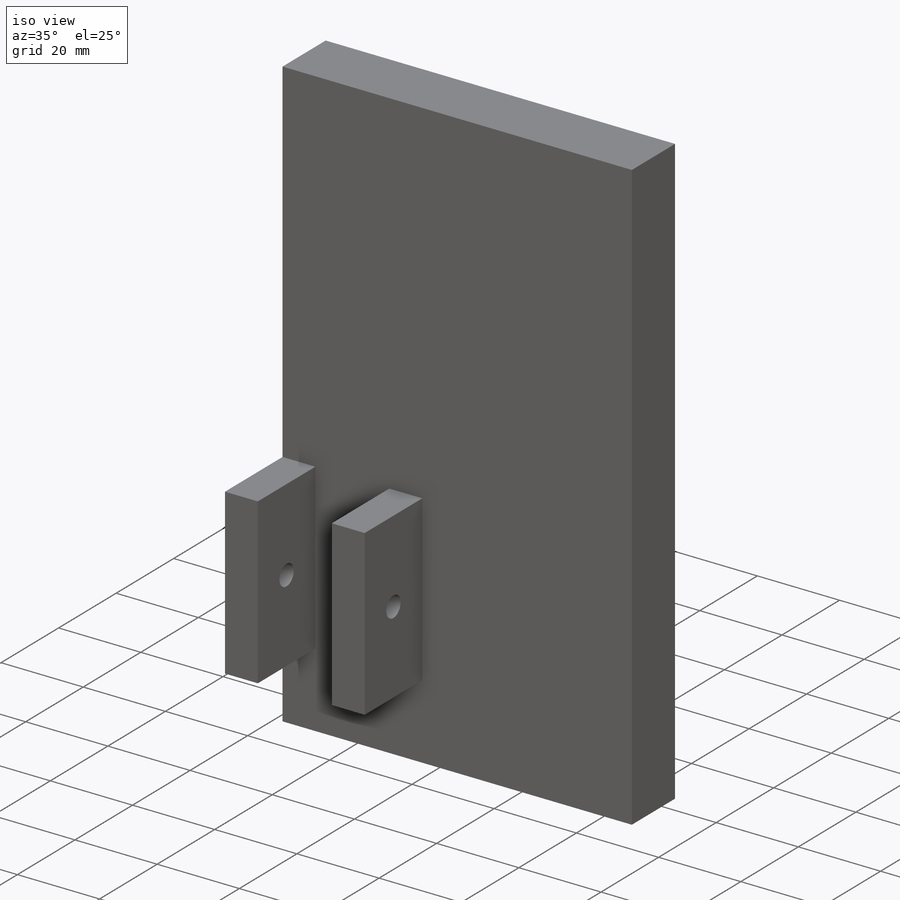
[diagram: iso view]
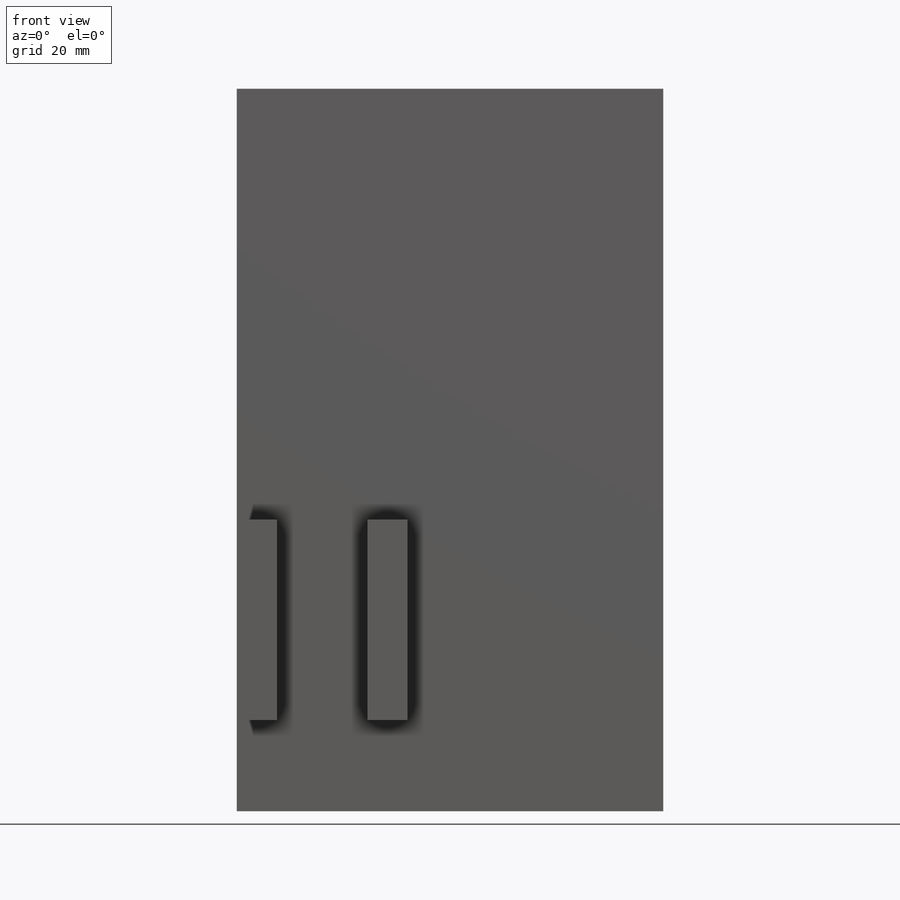
[diagram: front view]
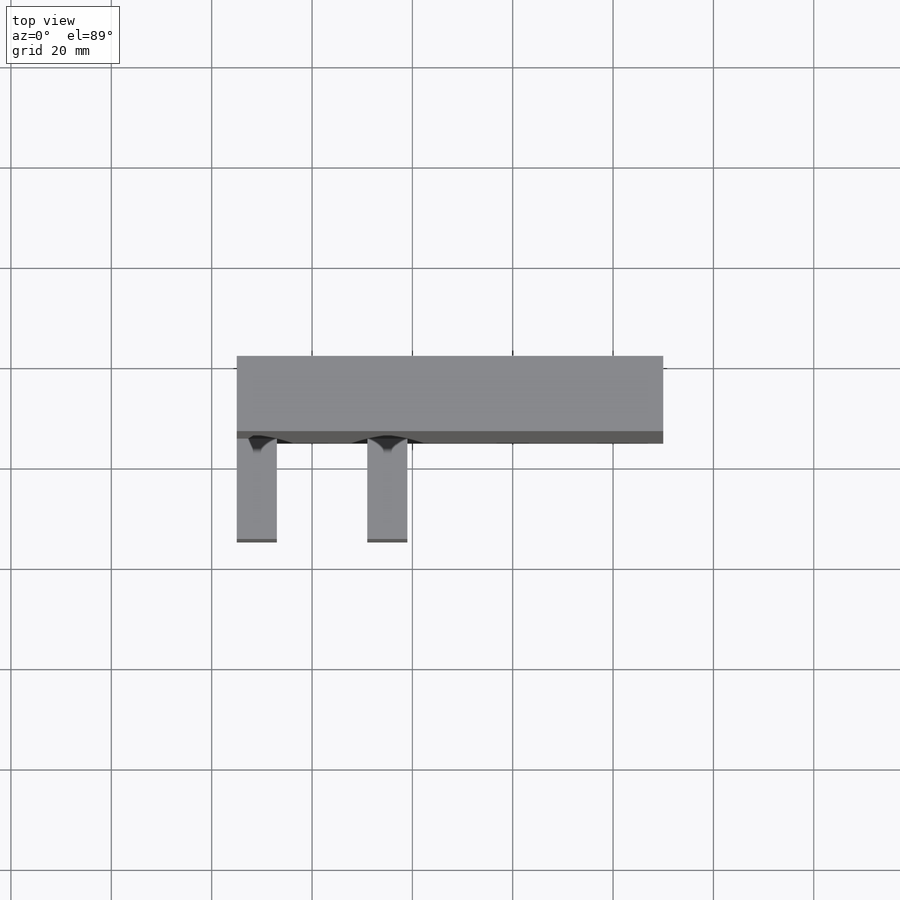
[diagram: top view]
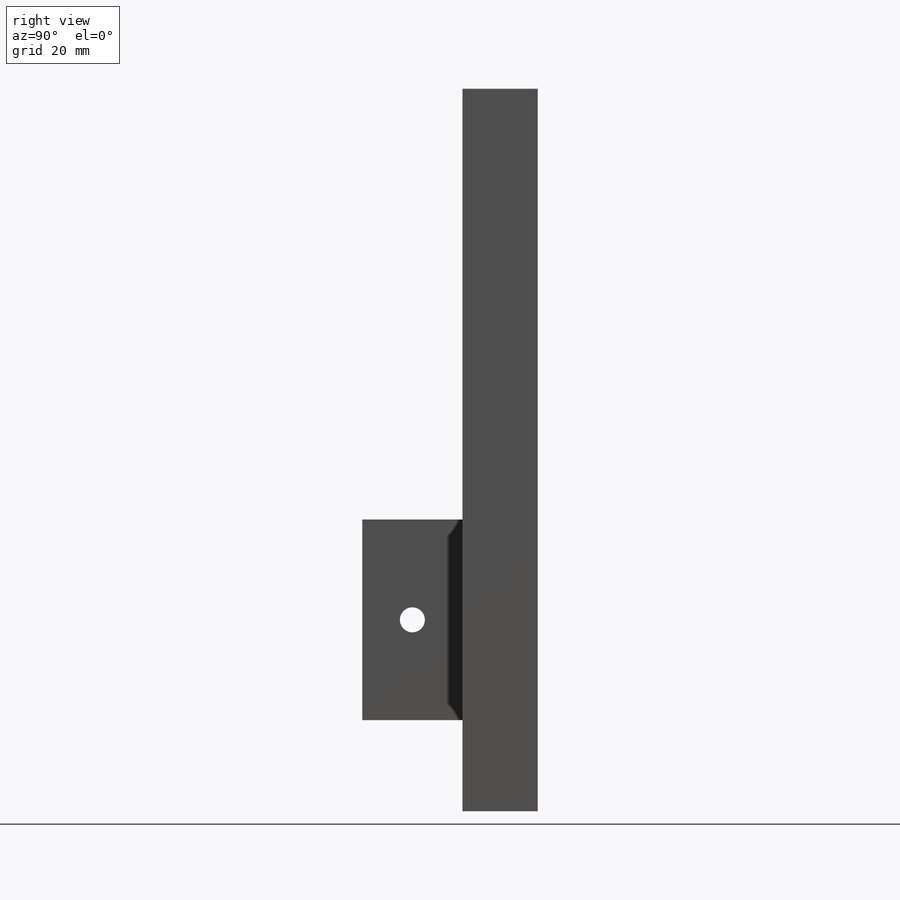
[diagram: right view]
SOLIDWORKS PART (.sldprt)
format: sldprt  version: not decoded by parser v0  size: 221,184 bytes
history: native  units: mm
features: sketch x4, plane x3, extrude x3, material x1, cut_extrude x1 (+9 scaffold rows collapsed)
feature tree (21):
  scaffold x9  (default folders/planes/origin — collapsed)
  material  "Material <not specified>"
  plane  "Plan de face"
  plane  "Plan de dessus"
  plane  "Plan de droite"
  sketch  "Sketch1"  dims[c1.D1=140.0mm c1.D2=85.0mm c1.D3=15.0mm c1.D4=70.0mm c2.D2=85.0mm c2.D1=4.0mm c2.D3=160.0mm c2.D4=15.0mm]
  extrude  "Boss-Extrude1"  Depth=10mm
  sketch  "Sketch2"  dims[c1.D1=20.0mm c1.D2=38.15mm c1.D3=18.15mm c2.D1=20.0mm c2.D3=8.0mm]
  extrude  "Boss-Extrude2"  Depth=20mm
  sketch  "Sketch4"  dims[D1=8.0mm D2=18.0mm]
  extrude  "Boss-Extrude3"  [1 undecoded]
  sketch  "Sketch3"  dims[D1=5.0mm D2=20.0mm D3=10.0mm]
  cut_extrude  "Cut-Extrude1"  [1 undecoded]
decode coverage: 6 of 8 modeling features carry decoded parameters
note: 2 parameter values undecoded
note: suppression state not decoded; provenance and decode notes live in map.json
